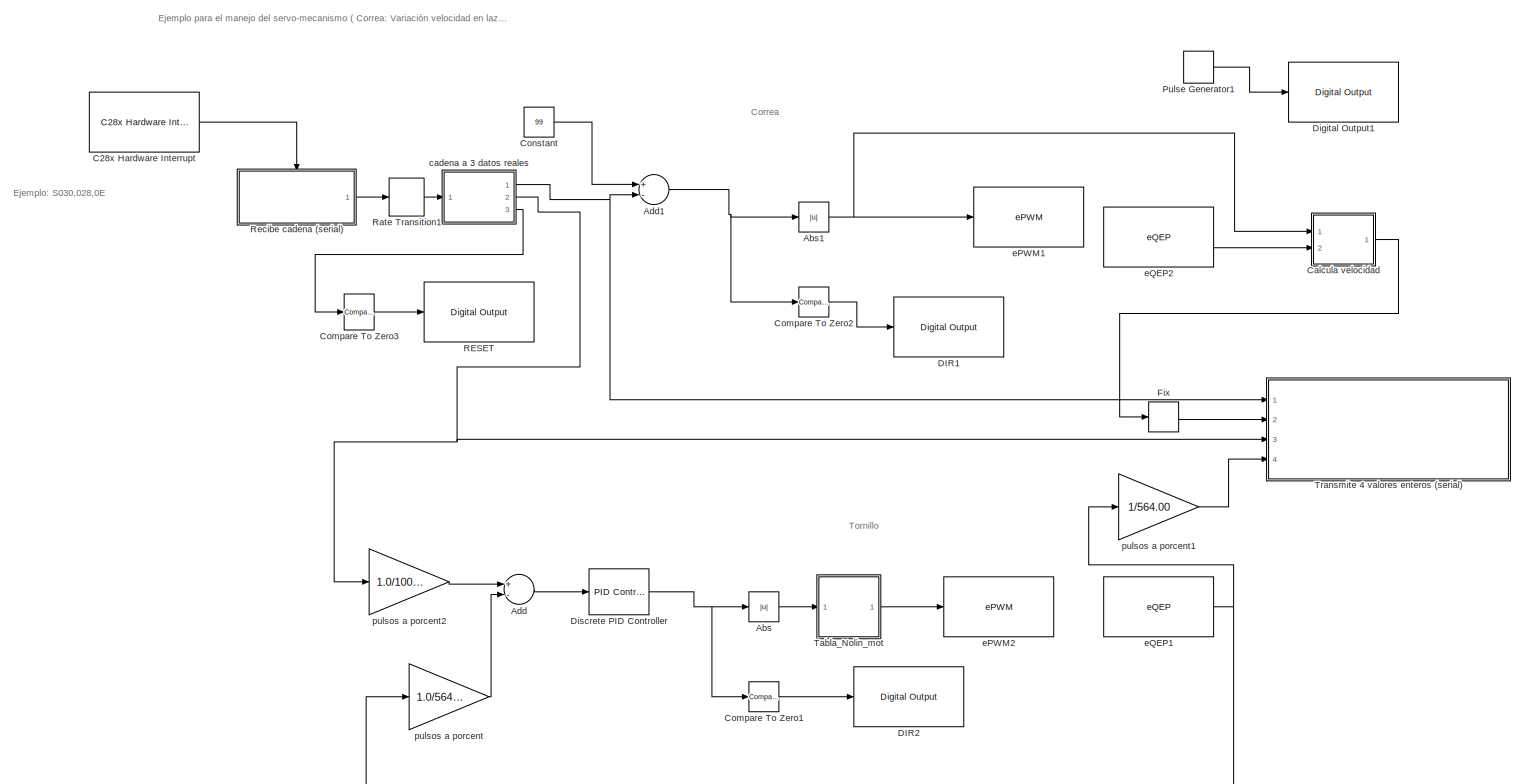
[diagram: root canvas - part 1/1, most of the canvas]
MODEL slx_41ebab8dce0c
KIND model
CONFIG AbsTol = auto
CONFIG EnableMultiTasking = on
CONFIG FixedStep = 0.01
CONFIG MaxStep = auto
CONFIG MinStep = auto
CONFIG RelTol = 1e-3
CONFIG SampleTimeConstraint = Unconstrained
CONFIG Solver = FixedStepDiscrete
CONFIG SolverName = FixedStepDiscrete
CONFIG StartTime = 0.0
CONFIG StopTime = Inf
BLOCK [Reference]  ePWM1  REF=c2802xlib/ePWM
  Ports = [1]
  SourceBlock = c2802xlib/ePWM
  SourceProductBaseCode = TIC2000
  SourceProductName = Embedded Coder Support Package for Texas Instruments C2000 Processors
  SourceType = C2802x/03x/05x/06x/M3x/37x/07x/004x/38x ePWM
  UserDataPersistent = on
BLOCK [Reference]  ePWM2   REF=c2802xlib/ePWM
  Ports = [1]
  SourceBlock = c2802xlib/ePWM
  SourceProductBaseCode = TIC2000
  SourceProductName = Embedded Coder Support Package for Texas Instruments C2000 Processors
  SourceType = C2802x/03x/05x/06x/M3x/37x/07x/004x/38x ePWM
  UserDataPersistent = on
BLOCK [Abs] Abs
  SaturateOnIntegerOverflow = off
BLOCK [Abs] Abs1
  SaturateOnIntegerOverflow = off
BLOCK [Sum] Add
  InputSameDT = off
  Inputs = +-
  OutDataTypeStr = Inherit: Inherit via internal rule
  Ports = [2, 1]
  SaturateOnIntegerOverflow = off
BLOCK [Sum] Add1
  InputSameDT = off
  Inputs = +-
  OutDataTypeStr = Inherit: Inherit via internal rule
  Ports = [2, 1]
  SaturateOnIntegerOverflow = off
BLOCK [Reference] C28x Hardware Interrupt  REF=c2000lib/Scheduling/C28x Hardware Interrupt
  Ports = [0, 1]
  SourceBlock = c2000lib/Scheduling/C28x Hardware Interrupt
  SourceProductBaseCode = TIC2000
  SourceProductName = Embedded Coder Support Package for Texas Instruments C2000 Processors
  SourceType = C28x Interrupt Block
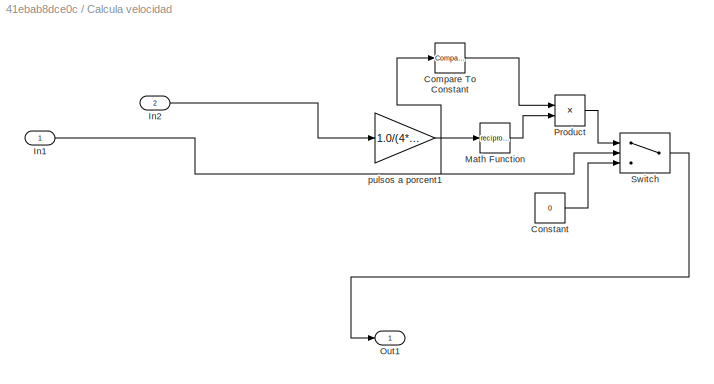
BLOCK [SubSystem] Calcula velocidad
  Ports = [2, 1]
  RequestExecContextInheritance = off
BLOCK [Reference] Calcula velocidad/Compare To Constant  REF=simulink/Logic and Bit
Operations/Compare
To Constant
  Ports = [1, 1]
  SourceBlock = simulink/Logic and Bit\nOperations/Compare\nTo Constant
  SourceProductBaseCode = SL
  SourceProductName = Simulink
  SourceType = Compare To Constant
BLOCK [Constant] Calcula velocidad/Constant
  Value = 0
BLOCK [Inport] Calcula velocidad/In1
  IconDisplay = Port number
BLOCK [Inport] Calcula velocidad/In2
  IconDisplay = Port number
  Port = 2
BLOCK [Math] Calcula velocidad/Math Function
  Operator = reciprocal
  Ports = [1, 1]
  SignedPower = off
BLOCK [Outport] Calcula velocidad/Out1
  IconDisplay = Port number
BLOCK [Product] Calcula velocidad/Product
  InputSameDT = off
  OutDataTypeStr = Inherit: Inherit via internal rule
  Ports = [2, 1]
  RndMeth = Floor
  SaturateOnIntegerOverflow = off
BLOCK [Switch] Calcula velocidad/Switch
  Criteria = u2 > Threshold
  InputSameDT = off
  SaturateOnIntegerOverflow = off
  Threshold = 19
BLOCK [Gain] Calcula velocidad/pulsos a porcent1
  Gain = 1.0/(4*281000.0)
  OutDataTypeStr = double
  ParamDataTypeStr = Inherit: Inherit via internal rule
  SaturateOnIntegerOverflow = off
BLOCK [Reference] Compare To Zero1  REF=simulink/Logic and Bit
Operations/Compare
To Zero
  Ports = [1, 1]
  SourceBlock = simulink/Logic and Bit\nOperations/Compare\nTo Zero
  SourceProductBaseCode = SL
  SourceProductName = Simulink
  SourceType = Compare To Zero
BLOCK [Reference] Compare To Zero2  REF=simulink/Logic and Bit
Operations/Compare
To Zero
  Ports = [1, 1]
  SourceBlock = simulink/Logic and Bit\nOperations/Compare\nTo Zero
  SourceProductBaseCode = SL
  SourceProductName = Simulink
  SourceType = Compare To Zero
BLOCK [Reference] Compare To Zero3  REF=simulink/Logic and Bit
Operations/Compare
To Zero
  Ports = [1, 1]
  SourceBlock = simulink/Logic and Bit\nOperations/Compare\nTo Zero
  SourceProductBaseCode = SL
  SourceProductName = Simulink
  SourceType = Compare To Zero
BLOCK [Constant] Constant
  Value = 99
BLOCK [Reference] DIR1  REF=c2837xDlib/Digital Output
  Ports = [1]
  SourceBlock = c2837xDlib/Digital Output
  SourceProductBaseCode = TIC2000
  SourceProductName = Embedded Coder Support Package for Texas Instruments C2000 Processors
  SourceType = F2837x GPIO Digital Output
  UserDataPersistent = on
BLOCK [Reference] DIR2   REF=c2837xDlib/Digital Output
  Ports = [1]
  SourceBlock = c2837xDlib/Digital Output
  SourceProductBaseCode = TIC2000
  SourceProductName = Embedded Coder Support Package for Texas Instruments C2000 Processors
  SourceType = F2837x GPIO Digital Output
  UserDataPersistent = on
BLOCK [Reference] Digital Output1  REF=c2837xDlib/Digital Output
  Ports = [1]
  SourceBlock = c2837xDlib/Digital Output
  SourceProductBaseCode = TIC2000
  SourceProductName = Embedded Coder Support Package for Texas Instruments C2000 Processors
  SourceType = F2837x GPIO Digital Output
  UserDataPersistent = on
BLOCK [Reference] Discrete PID Controller  REF=simulink/Continuous/PID Controller
  Ports = [1, 1]
  SourceBlock = simulink/Continuous/PID Controller
  SourceProductBaseCode = SL
  SourceProductName = Simulink
  SourceType = PID 1dof
BLOCK [Rounding] Fix
  Operator = fix
BLOCK [DiscretePulseGenerator] Pulse Generator1
  Amplitude = 4
  Period = 8
  Ports = [0, 1]
  PulseWidth = 4
  SampleTime = 0.1
BLOCK [Reference] RESET  REF=c2837xDlib/Digital Output
  Ports = [1]
  SourceBlock = c2837xDlib/Digital Output
  SourceProductBaseCode = TIC2000
  SourceProductName = Embedded Coder Support Package for Texas Instruments C2000 Processors
  SourceType = F2837x GPIO Digital Output
  UserDataPersistent = on
BLOCK [RateTransition] Rate Transition1
  AttributesFormatString = Ts = %<OutPortSampleTime>
  Integrity = off
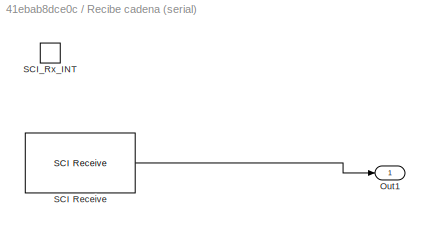
BLOCK [SubSystem] Recibe  cadena (serial)
  Ports = [0, 1, 0, 1]
  RequestExecContextInheritance = off
  SystemSampleTime = 1e-3
BLOCK [Outport] Recibe  cadena (serial)/Out1
  IconDisplay = Port number
BLOCK [Reference] Recibe  cadena (serial)/SCI Receive  REF=c280xlib/SCI Receive
  Ports = [0, 1]
  SourceBlock = c280xlib/SCI Receive
  SourceProductBaseCode = TIC2000
  SourceProductName = Embedded Coder Support Package for Texas Instruments C2000 Processors
  SourceType = C28x SCI Receive
BLOCK [TriggerPort] Recibe  cadena (serial)/SCI_Rx_INT
  Ports = []
  StatesWhenEnabling = held
  TriggerType = function-call
  VariantControl = Variant
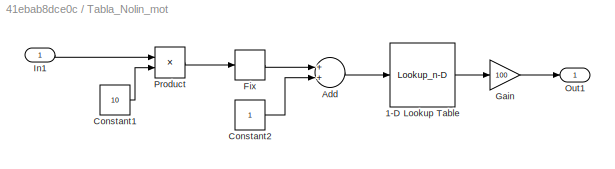
BLOCK [SubSystem] Tabla_Nolin_mot 
  Ports = [1, 1]
  RequestExecContextInheritance = off
BLOCK [Lookup_n-D] Tabla_Nolin_mot /1-D Lookup Table
  BreakpointsForDimension1 = [1:11]
  InternalRulePriority = Speed
  NumberOfTableDimensions = 1
  Ports = [1, 1]
  RndMeth = Simplest
  Table = [0 0.0 0.40 0.50 0.55 0.60 0.65 0.70 0.80 0.90 0.99]
BLOCK [Sum] Tabla_Nolin_mot /Add
  InputSameDT = off
  OutDataTypeStr = Inherit: Inherit via internal rule
  Ports = [2, 1]
  SaturateOnIntegerOverflow = off
BLOCK [Constant] Tabla_Nolin_mot /Constant1
  Value = 10
BLOCK [Constant] Tabla_Nolin_mot /Constant2
BLOCK [Rounding] Tabla_Nolin_mot /Fix
  Operator = ceil
BLOCK [Gain] Tabla_Nolin_mot /Gain
  Gain = 100
  OutDataTypeStr = Inherit: Inherit via internal rule
  ParamDataTypeStr = Inherit: Inherit via internal rule
  SaturateOnIntegerOverflow = off
BLOCK [Inport] Tabla_Nolin_mot /In1
  IconDisplay = Port number
BLOCK [Outport] Tabla_Nolin_mot /Out1
  IconDisplay = Port number
BLOCK [Product] Tabla_Nolin_mot /Product
  InputSameDT = off
  OutDataTypeStr = Inherit: Inherit via internal rule
  Ports = [2, 1]
  RndMeth = Floor
  SaturateOnIntegerOverflow = off
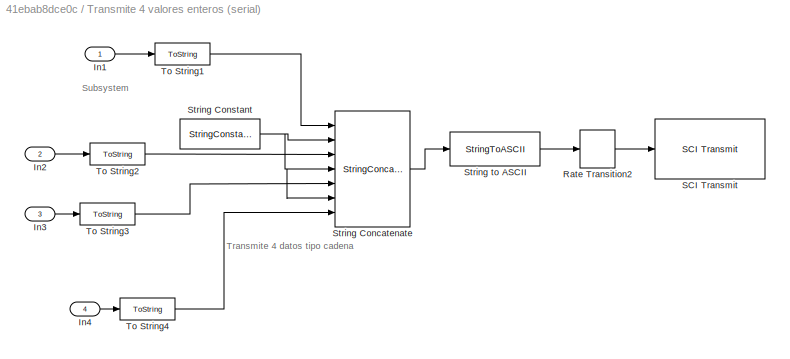
BLOCK [SubSystem] Transmite 4 valores enteros (serial) 
  Ports = [4]
  RequestExecContextInheritance = off
BLOCK [Inport] Transmite 4 valores enteros (serial) /In1
  IconDisplay = Port number
BLOCK [Inport] Transmite 4 valores enteros (serial) /In2
  IconDisplay = Port number
  Port = 2
BLOCK [Inport] Transmite 4 valores enteros (serial) /In3
  IconDisplay = Port number
  Port = 3
BLOCK [Inport] Transmite 4 valores enteros (serial) /In4 
  IconDisplay = Port number
  Port = 4
BLOCK [RateTransition] Transmite 4 valores enteros (serial) /Rate Transition2
  AttributesFormatString = Ts = %<OutPortSampleTime>
  Integrity = off
BLOCK [Reference] Transmite 4 valores enteros (serial) /SCI Transmit  REF=c280xlib/SCI Transmit
  Ports = [1]
  SourceBlock = c280xlib/SCI Transmit
  SourceProductBaseCode = TIC2000
  SourceProductName = Embedded Coder Support Package for Texas Instruments C2000 Processors
  SourceType = C28x SCI Transmit
BLOCK [StringConcatenate] Transmite 4 valores enteros (serial) /String Concatenate
  Inputs = 7
  Ports = [7, 1]
BLOCK [StringConstant] Transmite 4 valores enteros (serial) /String Constant
  String = ","
BLOCK [StringToASCII] Transmite 4 valores enteros (serial) /String to ASCII
  OutputVectorSize = 16
BLOCK [ToString] Transmite 4 valores enteros (serial) /To String1
BLOCK [ToString] Transmite 4 valores enteros (serial) /To String2
BLOCK [ToString] Transmite 4 valores enteros (serial) /To String3
BLOCK [ToString] Transmite 4 valores enteros (serial) /To String4
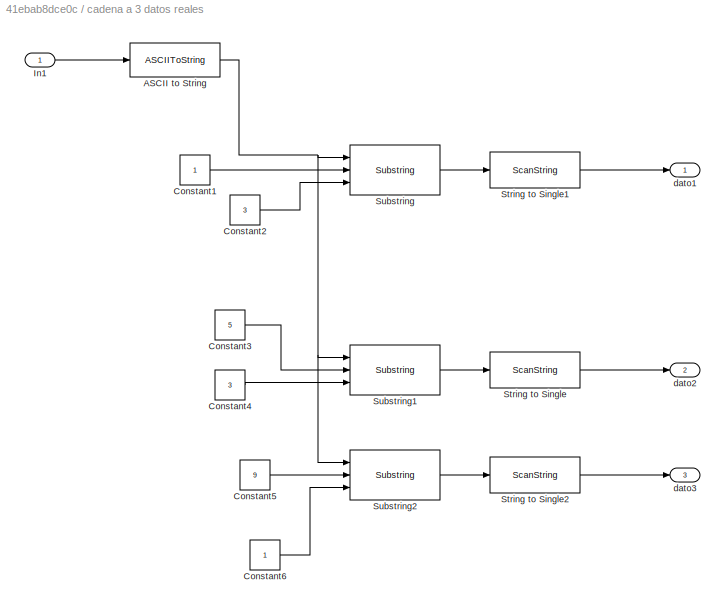
BLOCK [SubSystem] cadena a 3 datos reales
  Ports = [1, 3]
  RequestExecContextInheritance = off
BLOCK [ASCIIToString] cadena a 3 datos reales/ASCII to String
BLOCK [Constant] cadena a 3 datos reales/Constant1
  OutDataTypeStr = uint8
BLOCK [Constant] cadena a 3 datos reales/Constant2
  OutDataTypeStr = uint8
  Value = 3
BLOCK [Constant] cadena a 3 datos reales/Constant3
  OutDataTypeStr = uint8
  Value = 5
BLOCK [Constant] cadena a 3 datos reales/Constant4
  OutDataTypeStr = uint8
  Value = 3
BLOCK [Constant] cadena a 3 datos reales/Constant5
  OutDataTypeStr = uint8
  Value = 9
BLOCK [Constant] cadena a 3 datos reales/Constant6
  OutDataTypeStr = uint8
BLOCK [Inport] cadena a 3 datos reales/In1
  IconDisplay = Port number
BLOCK [ScanString] cadena a 3 datos reales/String to Single
  Format = "%f"
  Ports = [1, 1]
BLOCK [ScanString] cadena a 3 datos reales/String to Single1
  Format = "%f"
  Ports = [1, 1]
BLOCK [ScanString] cadena a 3 datos reales/String to Single2
  Format = "%d"
  Ports = [1, 1]
BLOCK [Substring] cadena a 3 datos reales/Substring
  Ports = [3, 1]
BLOCK [Substring] cadena a 3 datos reales/Substring1
  Ports = [3, 1]
BLOCK [Substring] cadena a 3 datos reales/Substring2
  Ports = [3, 1]
BLOCK [Outport] cadena a 3 datos reales/dato1
  IconDisplay = Port number
  InitialOutput = [0]
  VectorParamsAs1DForOutWhenUnconnected = off
BLOCK [Outport] cadena a 3 datos reales/dato2
  IconDisplay = Port number
  InitialOutput = [0]
  Port = 2
  VectorParamsAs1DForOutWhenUnconnected = off
BLOCK [Outport] cadena a 3 datos reales/dato3
  IconDisplay = Port number
  InitialOutput = [0]
  Port = 3
  VectorParamsAs1DForOutWhenUnconnected = off
BLOCK [Reference] eQEP1   REF=c280xlib/eQEP
  Ports = [0, 1]
  SourceBlock = c280xlib/eQEP
  SourceProductBaseCode = TIC2000
  SourceProductName = Embedded Coder Support Package for Texas Instruments C2000 Processors
  SourceType = C28x eQEP
BLOCK [Reference] eQEP2   REF=c280xlib/eQEP
  Ports = [0, 2]
  SourceBlock = c280xlib/eQEP
  SourceProductBaseCode = TIC2000
  SourceProductName = Embedded Coder Support Package for Texas Instruments C2000 Processors
  SourceType = C28x eQEP
BLOCK [Gain] pulsos a porcent
  Gain = 1.0/56400.0
  OutDataTypeStr = double
  ParamDataTypeStr = Inherit: Inherit via internal rule
  SaturateOnIntegerOverflow = off
BLOCK [Gain] pulsos a porcent1
  Gain = 1/564.00
  OutDataTypeStr = double
  ParamDataTypeStr = Inherit: Inherit via internal rule
  SaturateOnIntegerOverflow = off
BLOCK [Gain] pulsos a porcent2
  Gain = 1.0/100.0
  OutDataTypeStr = double
  ParamDataTypeStr = Inherit: Inherit via internal rule
  SaturateOnIntegerOverflow = off
ANNOTATION (root): Ejemplo para el manejo del servo-mecanismo ( Correa: Variación velocidad en lazo abierto, Tornillo: control Proporcional ).
ANNOTATION (root): Correa
ANNOTATION (root): Tornillo
ANNOTATION (root): Ejemplo: S030,028,0E
ANNOTATION Transmite 4 valores enteros (serial) : Subsystem
ANNOTATION Transmite 4 valores enteros (serial) : Transmite 4 datos tipo cadena
NET Abs1:1 ->  ePWM1:1, Calcula velocidad:1
LINE Abs:1 -> Tabla_Nolin_mot :1
NET Add1:1 -> Abs1:1, Compare To Zero2:1
LINE Add:1 -> Discrete PID Controller:1
LINE C28x Hardware Interrupt:1 -> Recibe  cadena (serial):trigger
LINE Calcula velocidad/Compare To Constant:1 -> Calcula velocidad/Product:1
LINE Calcula velocidad/Constant:1 -> Calcula velocidad/Switch:3
NET Calcula velocidad/In1:1 -> Calcula velocidad/Compare To Constant:1, Calcula velocidad/Switch:2
LINE Calcula velocidad/In2:1 -> Calcula velocidad/pulsos a porcent1:1
LINE Calcula velocidad/Math Function:1 -> Calcula velocidad/Product:2
LINE Calcula velocidad/Product:1 -> Calcula velocidad/Switch:1
LINE Calcula velocidad/Switch:1 -> Calcula velocidad/Out1:1
LINE Calcula velocidad/pulsos a porcent1:1 -> Calcula velocidad/Math Function:1
LINE Calcula velocidad:1 -> Fix:1
LINE Compare To Zero1:1 -> DIR2 :1
LINE Compare To Zero2:1 -> DIR1:1
LINE Compare To Zero3:1 -> RESET:1
LINE Constant:1 -> Add1:1
NET Discrete PID Controller:1 -> Abs:1, Compare To Zero1:1
LINE Fix:1 -> Transmite 4 valores enteros (serial) :2
LINE Pulse Generator1:1 -> Digital Output1:1
LINE Rate Transition1:1 -> cadena a 3 datos reales:1
LINE Recibe  cadena (serial)/SCI Receive:1 -> Recibe  cadena (serial)/Out1:1
LINE Recibe  cadena (serial):1 -> Rate Transition1:1
LINE Tabla_Nolin_mot /1-D Lookup Table:1 -> Tabla_Nolin_mot /Gain:1
LINE Tabla_Nolin_mot /Add:1 -> Tabla_Nolin_mot /1-D Lookup Table:1
LINE Tabla_Nolin_mot /Constant1:1 -> Tabla_Nolin_mot /Product:2
LINE Tabla_Nolin_mot /Constant2:1 -> Tabla_Nolin_mot /Add:2
LINE Tabla_Nolin_mot /Fix:1 -> Tabla_Nolin_mot /Add:1
LINE Tabla_Nolin_mot /Gain:1 -> Tabla_Nolin_mot /Out1:1
LINE Tabla_Nolin_mot /In1:1 -> Tabla_Nolin_mot /Product:1
LINE Tabla_Nolin_mot /Product:1 -> Tabla_Nolin_mot /Fix:1
LINE Tabla_Nolin_mot :1 ->  ePWM2 :1
LINE Transmite 4 valores enteros (serial) /In1:1 -> Transmite 4 valores enteros (serial) /To String1:1
LINE Transmite 4 valores enteros (serial) /In2:1 -> Transmite 4 valores enteros (serial) /To String2:1
LINE Transmite 4 valores enteros (serial) /In3:1 -> Transmite 4 valores enteros (serial) /To String3:1
LINE Transmite 4 valores enteros (serial) /In4 :1 -> Transmite 4 valores enteros (serial) /To String4:1
LINE Transmite 4 valores enteros (serial) /Rate Transition2:1 -> Transmite 4 valores enteros (serial) /SCI Transmit:1
LINE Transmite 4 valores enteros (serial) /String Concatenate:1 -> Transmite 4 valores enteros (serial) /String to ASCII:1
NET Transmite 4 valores enteros (serial) /String Constant:1 -> Transmite 4 valores enteros (serial) /String Concatenate:2, Transmite 4 valores enteros (serial) /String Concatenate:4, Transmite 4 valores enteros (serial) /String Concatenate:6
LINE Transmite 4 valores enteros (serial) /String to ASCII:1 -> Transmite 4 valores enteros (serial) /Rate Transition2:1
LINE Transmite 4 valores enteros (serial) /To String1:1 -> Transmite 4 valores enteros (serial) /String Concatenate:1
LINE Transmite 4 valores enteros (serial) /To String2:1 -> Transmite 4 valores enteros (serial) /String Concatenate:3
LINE Transmite 4 valores enteros (serial) /To String3:1 -> Transmite 4 valores enteros (serial) /String Concatenate:5
LINE Transmite 4 valores enteros (serial) /To String4:1 -> Transmite 4 valores enteros (serial) /String Concatenate:7
NET cadena a 3 datos reales/ASCII to String:1 -> cadena a 3 datos reales/Substring1:1, cadena a 3 datos reales/Substring2:1, cadena a 3 datos reales/Substring:1
LINE cadena a 3 datos reales/Constant1:1 -> cadena a 3 datos reales/Substring:2
LINE cadena a 3 datos reales/Constant2:1 -> cadena a 3 datos reales/Substring:3
LINE cadena a 3 datos reales/Constant3:1 -> cadena a 3 datos reales/Substring1:2
LINE cadena a 3 datos reales/Constant4:1 -> cadena a 3 datos reales/Substring1:3
LINE cadena a 3 datos reales/Constant5:1 -> cadena a 3 datos reales/Substring2:2
LINE cadena a 3 datos reales/Constant6:1 -> cadena a 3 datos reales/Substring2:3
LINE cadena a 3 datos reales/In1:1 -> cadena a 3 datos reales/ASCII to String:1
LINE cadena a 3 datos reales/String to Single1:1 -> cadena a 3 datos reales/dato1:1
LINE cadena a 3 datos reales/String to Single2:1 -> cadena a 3 datos reales/dato3:1
LINE cadena a 3 datos reales/String to Single:1 -> cadena a 3 datos reales/dato2:1
LINE cadena a 3 datos reales/Substring1:1 -> cadena a 3 datos reales/String to Single:1
LINE cadena a 3 datos reales/Substring2:1 -> cadena a 3 datos reales/String to Single2:1
LINE cadena a 3 datos reales/Substring:1 -> cadena a 3 datos reales/String to Single1:1
NET cadena a 3 datos reales:1 -> Add1:2, Transmite 4 valores enteros (serial) :1
NET cadena a 3 datos reales:2 -> Transmite 4 valores enteros (serial) :3, pulsos a porcent2:1
LINE cadena a 3 datos reales:3 -> Compare To Zero3:1
NET eQEP1 :1 -> pulsos a porcent1:1, pulsos a porcent:1
LINE eQEP2 :2 -> Calcula velocidad:2
LINE pulsos a porcent1:1 -> Transmite 4 valores enteros (serial) :4
LINE pulsos a porcent2:1 -> Add:1
LINE pulsos a porcent:1 -> Add:2
note: NET lines group one-source signal fan-out (src -> all destinations, sorted); 1:1 wires keep LINE
